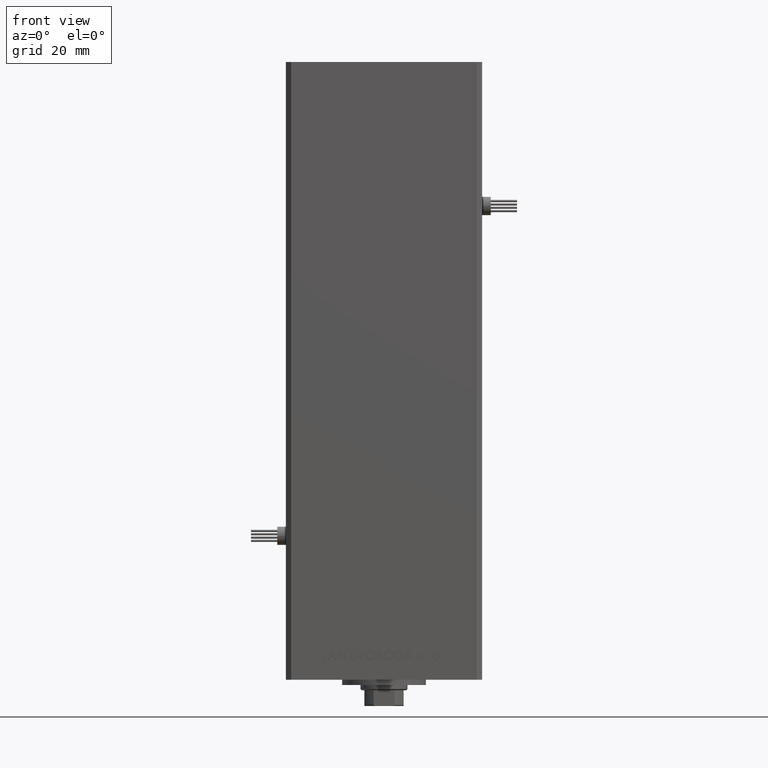
[diagram: clean part render]
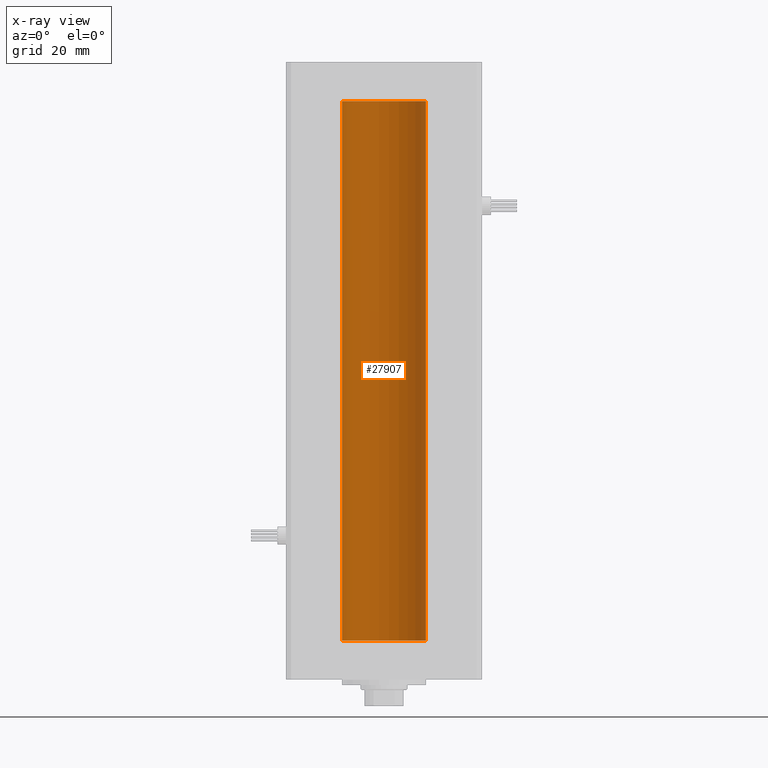
[diagram: x-ray — body ghosted, one internal face saturated and labeled with its STEP entity id]
A machine part, front view, then the same camera in x-ray: the body is ghosted and one INTERNAL B-rep face — a face not visible from any outside direction — is saturated and labeled: STEP entity #27907.
In plain terms, the highlighted cylindrical surface (partial cylindrical patch) has radius 16 mm, axis along (-0, -0, -1).
Its self-contained STEP definition (entity closure, byte-faithful):
#541 = VECTOR ( 'NONE', #28273, 1000.000000000000000 ) ;
#613 = DIRECTION ( 'NONE',  ( -0.000000000000000000, -0.000000000000000000, -1.000000000000000000 ) ) ;
#1135 = FACE_OUTER_BOUND ( 'NONE', #27887, .T. ) ;
#1628 = VERTEX_POINT ( 'NONE', #34791 ) ;
#3044 = CARTESIAN_POINT ( 'NONE',  ( -16.00000000000000000, 0.000000000000000000, 206.0000000000000000 ) ) ;
#3519 = VECTOR ( 'NONE', #6340, 1000.000000000000000 ) ;
#4262 = EDGE_CURVE ( 'NONE', #44986, #1628, #5887, .T. ) ;
#5887 = CIRCLE ( 'NONE', #33603, 16.00000000000000000 ) ;
#6273 = AXIS2_PLACEMENT_3D ( 'NONE', #32952, #613, #25060 ) ;
#6340 = DIRECTION ( 'NONE',  ( -0.000000000000000000, -0.000000000000000000, -1.000000000000000000 ) ) ;
#7074 = CARTESIAN_POINT ( 'NONE',  ( 16.00000000000000000, 1.959434878635765131E-15, 0.000000000000000000 ) ) ;
#9012 = CYLINDRICAL_SURFACE ( 'NONE', #6273, 16.00000000000000000 ) ;
#9348 = DIRECTION ( 'NONE',  ( -0.000000000000000000, 0.000000000000000000, 1.000000000000000000 ) ) ;
#11581 = ORIENTED_EDGE ( 'NONE', *, *, #35799, .T. ) ;
#11925 = CARTESIAN_POINT ( 'NONE',  ( 0.000000000000000000, 0.000000000000000000, 0.000000000000000000 ) ) ;
#15746 = VERTEX_POINT ( 'NONE', #3044 ) ;
#16377 = DIRECTION ( 'NONE',  ( -0.000000000000000000, 0.000000000000000000, 1.000000000000000000 ) ) ;
#17116 = EDGE_CURVE ( 'NONE', #15746, #1628, #34996, .T. ) ;
#24848 = LINE ( 'NONE', #40347, #541 ) ;
#25060 = DIRECTION ( 'NONE',  ( -1.000000000000000000, 0.000000000000000000, 0.000000000000000000 ) ) ;
#26537 = ORIENTED_EDGE ( 'NONE', *, *, #30607, .F. ) ;
#27887 = EDGE_LOOP ( 'NONE', ( #26537, #11581, #38914, #42424 ) ) ;
#27907 = ADVANCED_FACE ( 'NONE', ( #1135 ), #9012, .F. ) ;
#28192 = CARTESIAN_POINT ( 'NONE',  ( 16.00000000000000000, 1.959434878635765131E-15, 206.0000000000000000 ) ) ;
#28273 = DIRECTION ( 'NONE',  ( -0.000000000000000000, -0.000000000000000000, -1.000000000000000000 ) ) ;
#28854 = AXIS2_PLACEMENT_3D ( 'NONE', #45362, #9348, #37733 ) ;
#29749 = CARTESIAN_POINT ( 'NONE',  ( -16.00000000000000000, 0.000000000000000000, 206.0000000000000000 ) ) ;
#30607 = EDGE_CURVE ( 'NONE', #47901, #44986, #24848, .T. ) ;
#32952 = CARTESIAN_POINT ( 'NONE',  ( 0.000000000000000000, 0.000000000000000000, 206.0000000000000000 ) ) ;
#33603 = AXIS2_PLACEMENT_3D ( 'NONE', #11925, #16377, #34226 ) ;
#34226 = DIRECTION ( 'NONE',  ( 1.000000000000000000, 0.000000000000000000, 0.000000000000000000 ) ) ;
#34791 = CARTESIAN_POINT ( 'NONE',  ( -16.00000000000000000, 0.000000000000000000, 0.000000000000000000 ) ) ;
#34996 = LINE ( 'NONE', #29749, #3519 ) ;
#35799 = EDGE_CURVE ( 'NONE', #47901, #15746, #42275, .T. ) ;
#37733 = DIRECTION ( 'NONE',  ( 1.000000000000000000, 0.000000000000000000, 0.000000000000000000 ) ) ;
#38914 = ORIENTED_EDGE ( 'NONE', *, *, #17116, .T. ) ;
#40347 = CARTESIAN_POINT ( 'NONE',  ( 16.00000000000000000, 1.959434878635765131E-15, 206.0000000000000000 ) ) ;
#42275 = CIRCLE ( 'NONE', #28854, 16.00000000000000000 ) ;
#42424 = ORIENTED_EDGE ( 'NONE', *, *, #4262, .F. ) ;
#44986 = VERTEX_POINT ( 'NONE', #7074 ) ;
#45362 = CARTESIAN_POINT ( 'NONE',  ( 0.000000000000000000, 0.000000000000000000, 206.0000000000000000 ) ) ;
#47901 = VERTEX_POINT ( 'NONE', #28192 ) ;